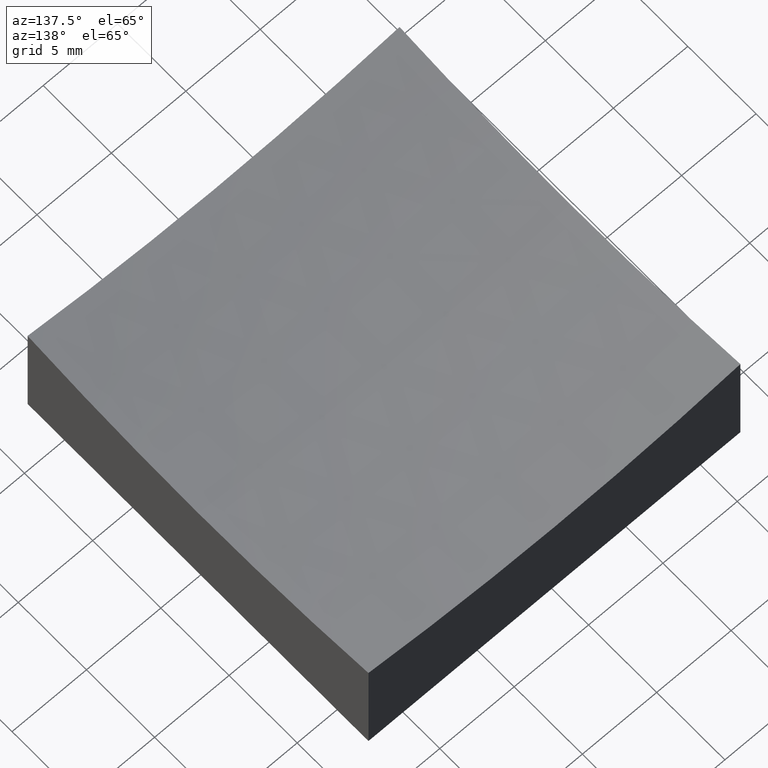
[diagram: clean part render]
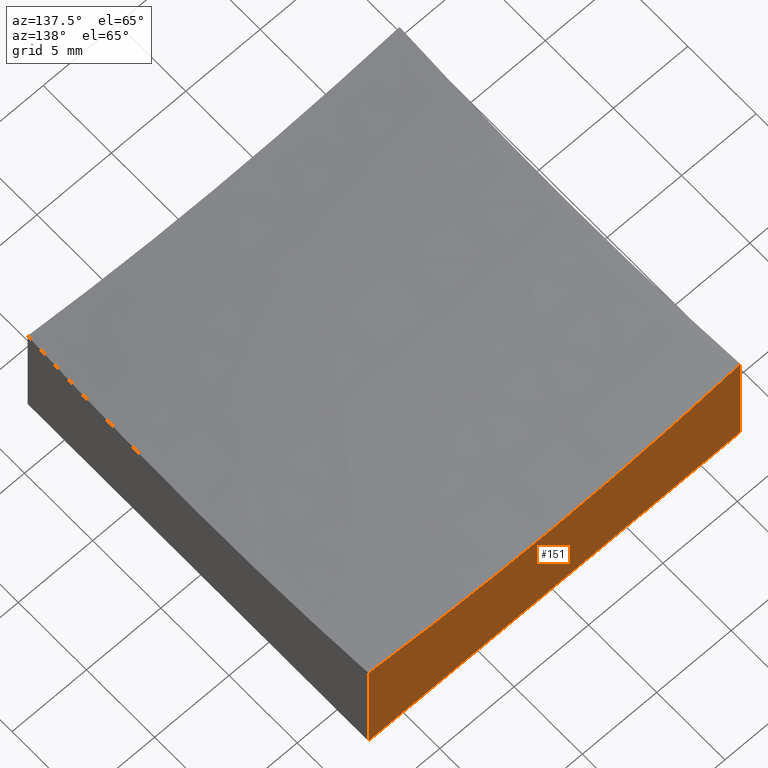
[diagram: same view with one face highlighted and labeled with its STEP entity id]
A machine part, auxiliary view. The second image highlights one B-rep face of the part: STEP entity #151.
In plain terms, the highlighted planar face has unit normal (0, 1, 0).
Its self-contained STEP definition (entity closure, byte-faithful):
#5 = CARTESIAN_POINT ( 'NONE',  ( -12.50000000000000000, 12.50000000000000000, 20.00000000000000000 ) ) ;
#9 = AXIS2_PLACEMENT_3D ( 'NONE', #143, #224, #222 ) ;
#19 = VERTEX_POINT ( 'NONE', #85 ) ;
#29 = VECTOR ( 'NONE', #120, 1000.000000000000000 ) ;
#39 = ORIENTED_EDGE ( 'NONE', *, *, #95, .T. ) ;
#40 = LINE ( 'NONE', #5, #111 ) ;
#50 = EDGE_CURVE ( 'NONE', #110, #98, #40, .T. ) ;
#58 = CARTESIAN_POINT ( 'NONE',  ( 12.50000000000000000, 12.50000000000000000, 7.977567328363813104 ) ) ;
#82 = CARTESIAN_POINT ( 'NONE',  ( -12.50000000000000000, 12.50000000000000000, 0.0000000000000000000 ) ) ;
#85 = CARTESIAN_POINT ( 'NONE',  ( 12.50000000000000000, 12.50000000000000000, 0.0000000000000000000 ) ) ;
#86 = CARTESIAN_POINT ( 'NONE',  ( -12.50000000000000000, 12.50000000000000000, 20.00000000000000000 ) ) ;
#88 = EDGE_CURVE ( 'NONE', #98, #19, #240, .T. ) ;
#95 = EDGE_CURVE ( 'NONE', #131, #19, #99, .T. ) ;
#98 = VERTEX_POINT ( 'NONE', #215 ) ;
#99 = LINE ( 'NONE', #192, #109 ) ;
#109 = VECTOR ( 'NONE', #238, 1000.000000000000000 ) ;
#110 = VERTEX_POINT ( 'NONE', #119 ) ;
#111 = VECTOR ( 'NONE', #234, 1000.000000000000000 ) ;
#116 = CIRCLE ( 'NONE', #9, 79.01740314639556573 ) ;
#117 = DIRECTION ( 'NONE',  ( 0.0000000000000000000, 1.000000000000000000, 0.0000000000000000000 ) ) ;
#119 = CARTESIAN_POINT ( 'NONE',  ( -12.50000000000000000, 12.50000000000000000, 7.977567328363813104 ) ) ;
#120 = DIRECTION ( 'NONE',  ( 1.000000000000000000, 0.0000000000000000000, 0.0000000000000000000 ) ) ;
#131 = VERTEX_POINT ( 'NONE', #58 ) ;
#135 = EDGE_LOOP ( 'NONE', ( #169, #39, #229, #211 ) ) ;
#143 = CARTESIAN_POINT ( 'NONE',  ( 1.053196247266724167E-14, 12.50000000000000000, 86.00000000000000000 ) ) ;
#151 = ADVANCED_FACE ( 'NONE', ( #179 ), #239, .T. ) ;
#169 = ORIENTED_EDGE ( 'NONE', *, *, #219, .F. ) ;
#179 = FACE_OUTER_BOUND ( 'NONE', #135, .T. ) ;
#192 = CARTESIAN_POINT ( 'NONE',  ( 12.50000000000000000, 12.50000000000000000, 20.00000000000000000 ) ) ;
#194 = DIRECTION ( 'NONE',  ( 0.0000000000000000000, -0.0000000000000000000, 1.000000000000000000 ) ) ;
#198 = AXIS2_PLACEMENT_3D ( 'NONE', #86, #117, #194 ) ;
#211 = ORIENTED_EDGE ( 'NONE', *, *, #50, .F. ) ;
#215 = CARTESIAN_POINT ( 'NONE',  ( -12.50000000000000000, 12.50000000000000000, 0.0000000000000000000 ) ) ;
#219 = EDGE_CURVE ( 'NONE', #131, #110, #116, .T. ) ;
#222 = DIRECTION ( 'NONE',  ( 0.0000000000000000000, 0.0000000000000000000, 1.000000000000000000 ) ) ;
#224 = DIRECTION ( 'NONE',  ( 0.0000000000000000000, 1.000000000000000000, 0.0000000000000000000 ) ) ;
#229 = ORIENTED_EDGE ( 'NONE', *, *, #88, .F. ) ;
#234 = DIRECTION ( 'NONE',  ( -0.0000000000000000000, -0.0000000000000000000, -1.000000000000000000 ) ) ;
#238 = DIRECTION ( 'NONE',  ( -0.0000000000000000000, -0.0000000000000000000, -1.000000000000000000 ) ) ;
#239 = PLANE ( 'NONE',  #198 ) ;
#240 = LINE ( 'NONE', #82, #29 ) ;